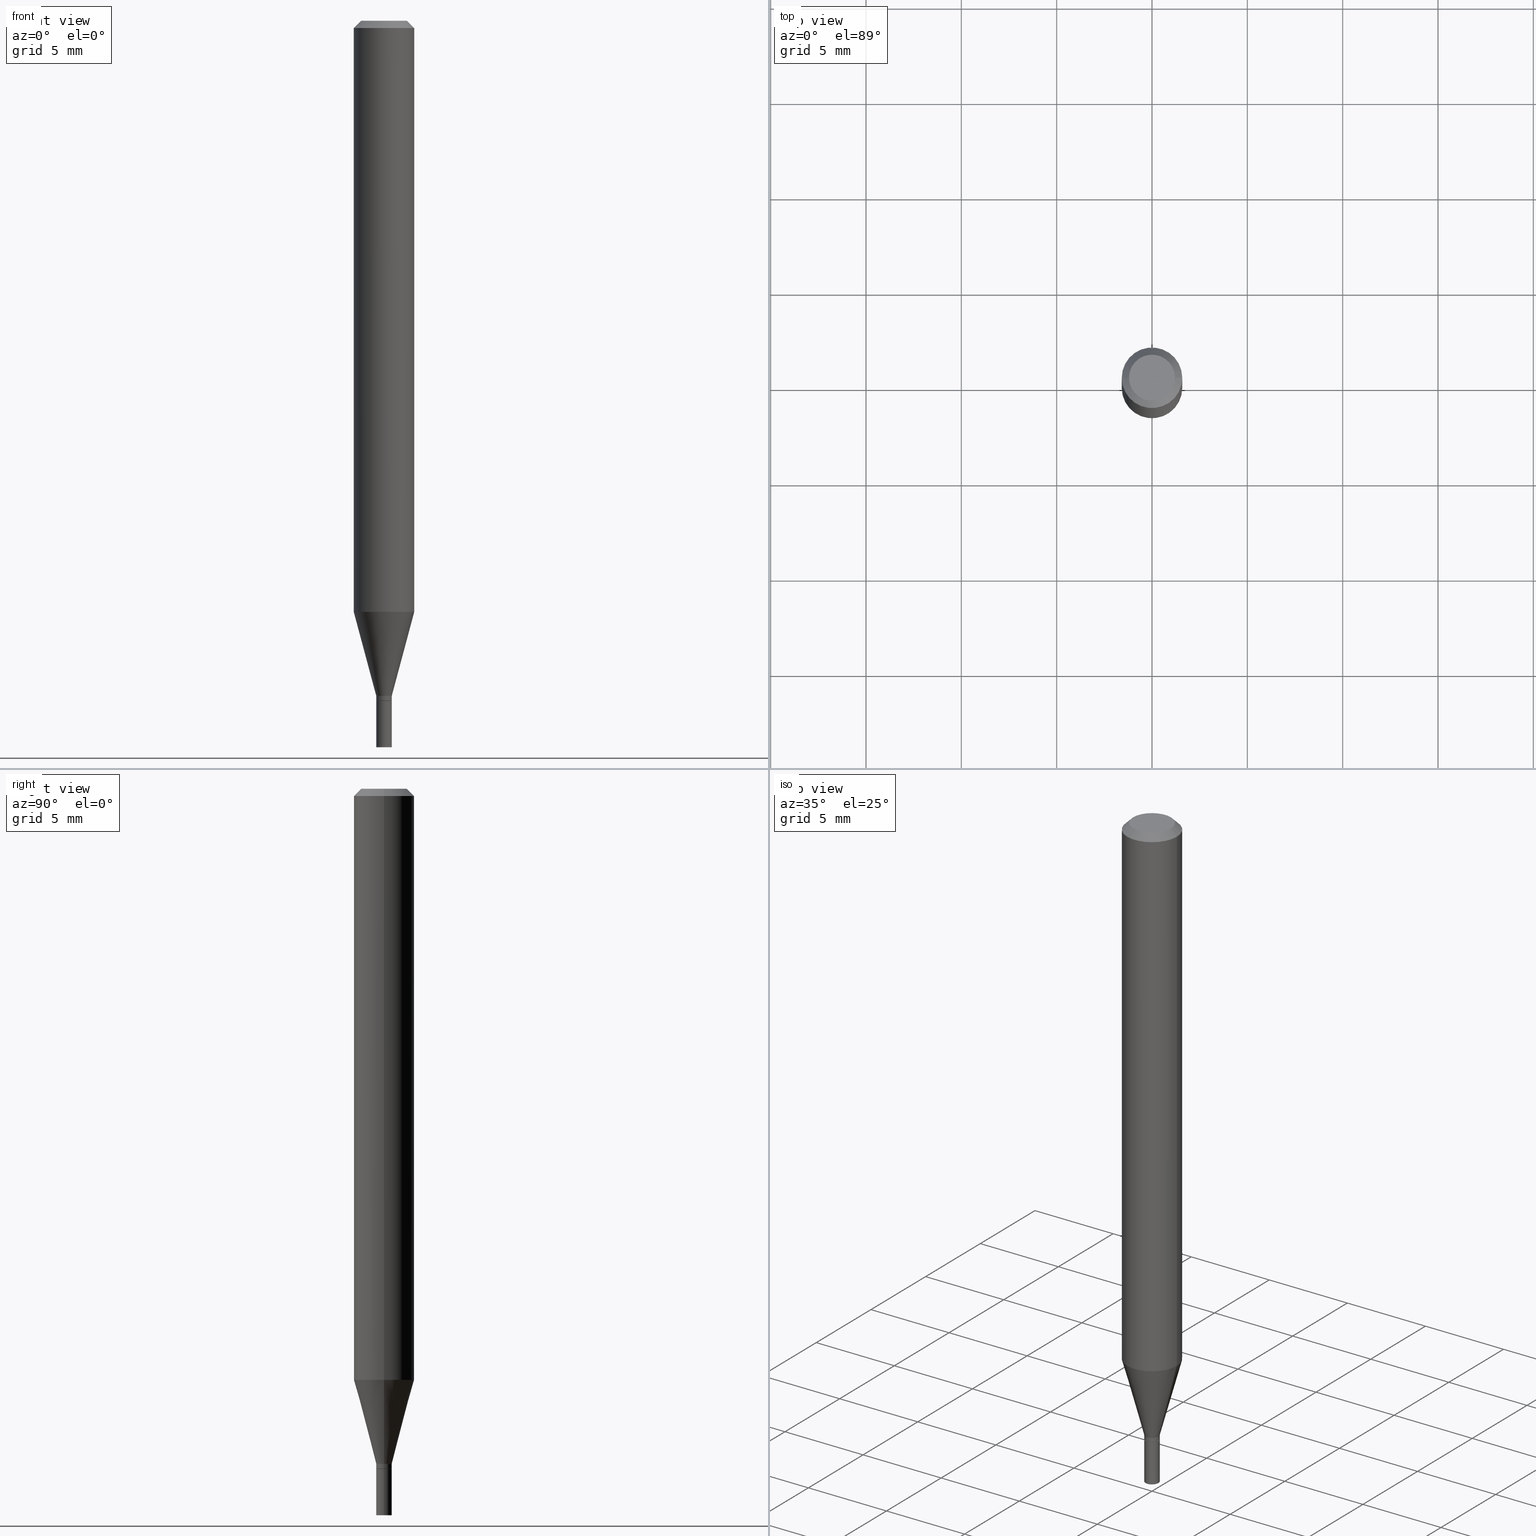
[diagram: canonical four-view strip — front | top / right | iso, engineering-drawing reading convention]
A machine part, canonical four-view strip (front | top / right | iso — engineering-drawing reading convention). The complete STEP part file that produces these views, byte-faithful:
ISO-10303-21;
HEADER;
FILE_DESCRIPTION (( 'STEP AP203' ),
    '1' );
FILE_NAME ('00838.STEP',
    '2024-03-19T22:39:48',
    ( '' ),
    ( '' ),
    'SwSTEP 2.0',
    'SolidWorks 2023',
    '' );
FILE_SCHEMA (( 'CONFIG_CONTROL_DESIGN' ));
ENDSEC;

DATA;
#1 = DIRECTION ( 'NONE',  ( 1.000000000000000000, -6.982962677686244622E-15, 0.000000000000000000 ) ) ;
#2 = PLANE ( 'NONE',  #446 ) ;
#3 = EDGE_LOOP ( 'NONE', ( #109, #317 ) ) ;
#4 = DATE_AND_TIME ( #211, #93 ) ;
#5 = DIRECTION ( 'NONE',  ( 0.2588190451025213501, 1.565188264969621968E-15, 0.9659258262890682012 ) ) ;
#6 = AXIS2_PLACEMENT_3D ( 'NONE', #67, #328, #216 ) ;
#7 = ORIENTED_EDGE ( 'NONE', *, *, #84, .T. ) ;
#8 = CARTESIAN_POINT ( 'NONE',  ( 2.984595972587221379E-29, -4.261212048961128661E-15, -1.220459637448047641 ) ) ;
#9 = VERTEX_POINT ( 'NONE', #164 ) ;
#10 = CONICAL_SURFACE ( 'NONE', #351, 0.01599999999999992401, 0.2617993877991500740 ) ;
#11 = EDGE_CURVE ( 'NONE', #308, #9, #283, .T. ) ;
#12 = ORIENTED_EDGE ( 'NONE', *, *, #218, .F. ) ;
#13 = DIRECTION ( 'NONE',  ( -2.445468806185136597E-29, 3.491481338843145583E-15, 1.000000000000000000 ) ) ;
#14 = ORIENTED_EDGE ( 'NONE', *, *, #11, .T. ) ;
#15 = ORIENTED_EDGE ( 'NONE', *, *, #94, .T. ) ;
#16 = ADVANCED_FACE ( 'NONE', ( #457 ), #201, .T. ) ;
#17 = ORIENTED_EDGE ( 'NONE', *, *, #192, .T. ) ;
#18 = CIRCLE ( 'NONE', #429, 0.01600000000000000033 ) ;
#19 = CARTESIAN_POINT ( 'NONE',  ( 0.01600000000000000033, -1.117274028429802713E-16, 7.801882841273497199E-31 ) ) ;
#20 = CARTESIAN_POINT ( 'NONE',  ( -0.06250000000000000000, 3.840629472727444916E-16, -0.01499999999999999944 ) ) ;
#21 = CARTESIAN_POINT ( 'NONE',  ( 3.432215469480839613E-29, -4.900294059066355366E-15, -1.403500000000000192 ) ) ;
#22 = CIRCLE ( 'NONE', #180, 0.01599999999999992401 ) ;
#23 = LOCAL_TIME ( 18, 39, 48.00000000000000000, #367 ) ;
#24 = COORDINATED_UNIVERSAL_TIME_OFFSET ( 5, 0, .BEHIND. ) ;
#25 = EDGE_CURVE ( 'NONE', #275, #335, #344, .T. ) ;
#26 = LINE ( 'NONE', #289, #316 ) ;
#27 = AXIS2_PLACEMENT_3D ( 'NONE', #270, #112, #82 ) ;
#28 = CARTESIAN_POINT ( 'NONE',  ( 3.433438203883931854E-29, -4.902039799735776870E-15, -1.404000000000000137 ) ) ;
#29 = SECURITY_CLASSIFICATION ( '', '', #402 ) ;
#30 = COORDINATED_UNIVERSAL_TIME_OFFSET ( 5, 0, .BEHIND. ) ;
#31 = CARTESIAN_POINT ( 'NONE',  ( 0.01599999999999992401, -4.978852389190325393E-15, -1.394000000000000128 ) ) ;
#32 = ADVANCED_FACE ( 'NONE', ( #382 ), #171, .T. ) ;
#33 = DIRECTION ( 'NONE',  ( -2.445468806185136597E-29, 3.491481338843145583E-15, 1.000000000000000000 ) ) ;
#34 = ORIENTED_EDGE ( 'NONE', *, *, #198, .T. ) ;
#35 = DIRECTION ( 'NONE',  ( 2.438088387897960049E-29, -3.491481338843145188E-15, -1.000000000000000000 ) ) ;
#36 = CLOSED_SHELL ( 'NONE', ( #410, #427, #32, #314, #153, #258, #229, #342, #448, #113, #238, #16 ) ) ;
#37 = AXIS2_PLACEMENT_3D ( 'NONE', #246, #363, #57 ) ;
#38 = VECTOR ( 'NONE', #403, 39.37007874015748143 ) ;
#39 = CYLINDRICAL_SURFACE ( 'NONE', #99, 0.01600000000000000033 ) ;
#40 = CARTESIAN_POINT ( 'NONE',  ( 3.408983515822080869E-29, -4.867124986347346010E-15, -1.394000000000000128 ) ) ;
#41 = LINE ( 'NONE', #235, #165 ) ;
#42 = VERTEX_POINT ( 'NONE', #52 ) ;
#43 = EDGE_CURVE ( 'NONE', #350, #266, #431, .T. ) ;
#44 = ORIENTED_EDGE ( 'NONE', *, *, #294, .T. ) ;
#45 = FACE_OUTER_BOUND ( 'NONE', #420, .T. ) ;
#46 = AXIS2_PLACEMENT_3D ( 'NONE', #284, #458, #169 ) ;
#47 = ORIENTED_EDGE ( 'NONE', *, *, #326, .T. ) ;
#48 = ORIENTED_EDGE ( 'NONE', *, *, #120, .F. ) ;
#49 = EDGE_CURVE ( 'NONE', #196, #226, #242, .T. ) ;
#50 = EDGE_CURVE ( 'NONE', #308, #226, #205, .T. ) ;
#51 = CARTESIAN_POINT ( 'NONE',  ( 8.117327640808780352E-46, -1.158939255633829398E-31, -3.319333953587241620E-17 ) ) ;
#52 = CARTESIAN_POINT ( 'NONE',  ( -0.01599999999999992401, -4.285280493868398751E-15, -1.394000000000000128 ) ) ;
#53 = AXIS2_PLACEMENT_3D ( 'NONE', #208, #360, #1 ) ;
#54 = CC_DESIGN_APPROVAL ( #383, ( #378 ) ) ;
#55 = ORIENTED_EDGE ( 'NONE', *, *, #49, .T. ) ;
#56 = LINE ( 'NONE', #463, #248 ) ;
#57 = DIRECTION ( 'NONE',  ( 1.000000000000000000, -6.982962677686266711E-15, 4.876176775795935793E-29 ) ) ;
#58 = CARTESIAN_POINT ( 'NONE',  ( 8.117327640808780352E-46, -1.158939255633829398E-31, -3.319333953587241620E-17 ) ) ;
#59 = LOCAL_TIME ( 18, 39, 48.00000000000000000, #213 ) ;
#60 = DIRECTION ( 'NONE',  ( 1.000000000000000000, -6.982962677686271444E-15, 0.000000000000000000 ) ) ;
#61 = EDGE_CURVE ( 'NONE', #266, #231, #91, .T. ) ;
#62 = APPROVAL_STATUS ( 'not_yet_approved' ) ;
#63 = CARTESIAN_POINT ( 'NONE',  ( -0.01599999999999992401, -4.753438148625730668E-15, -1.394000000000000128 ) ) ;
#64 = APPLICATION_PROTOCOL_DEFINITION ( 'international standard', 'config_control_design', 1994, #442 ) ;
#65 = DIRECTION ( 'NONE',  ( 0.7071067811865483499, -7.319954787623257623E-15, -0.7071067811865466846 ) ) ;
#66 = DATE_AND_TIME ( #396, #23 ) ;
#67 = CARTESIAN_POINT ( 'NONE',  ( 3.433438203883931854E-29, -4.902039799735776870E-15, -1.404000000000000137 ) ) ;
#68 = CIRCLE ( 'NONE', #209, 0.06250000000000000000 ) ;
#69 = PERSON_AND_ORGANIZATION ( #310, #243 ) ;
#70 = DIRECTION ( 'NONE',  ( -2.445468806185136597E-29, 3.491481338843145583E-15, 1.000000000000000000 ) ) ;
#71 = DIRECTION ( 'NONE',  ( -0.7071067811865642261, 7.493145998870414114E-15, 0.7071067811865309194 ) ) ;
#72 = ORIENTED_EDGE ( 'NONE', *, *, #294, .F. ) ;
#73 = CARTESIAN_POINT ( 'NONE',  ( -0.01599999999999992401, -4.786607221344740024E-15, -1.403500000000000192 ) ) ;
#74 = EDGE_LOOP ( 'NONE', ( #240, #7, #414, #227 ) ) ;
#75 = DIRECTION ( 'NONE',  ( 1.000000000000000000, -6.982962677686266711E-15, 4.876176775795935793E-29 ) ) ;
#76 = AXIS2_PLACEMENT_3D ( 'NONE', #245, #89, #125 ) ;
#77 = EDGE_LOOP ( 'NONE', ( #90, #374, #95, #118 ) ) ;
#78 = CC_DESIGN_DATE_AND_TIME_ASSIGNMENT ( #438, #145, ( #389 ) ) ;
#79 = DIRECTION ( 'NONE',  ( -2.445468806185136597E-29, 3.491481338843145583E-15, 1.000000000000000000 ) ) ;
#80 = EDGE_LOOP ( 'NONE', ( #346, #450 ) ) ;
#81 = CARTESIAN_POINT ( 'NONE',  ( 0.01600000000000000033, -5.348949411107699138E-15, -1.500000000000000222 ) ) ;
#82 = DIRECTION ( 'NONE',  ( 1.000000000000000000, -6.982962677686237523E-15, 0.000000000000000000 ) ) ;
#83 = VERTEX_POINT ( 'NONE', #332 ) ;
#84 = EDGE_CURVE ( 'NONE', #42, #373, #361, .T. ) ;
#85 = VECTOR ( 'NONE', #387, 39.37007874015748143 ) ;
#86 = AXIS2_PLACEMENT_3D ( 'NONE', #333, #327, #134 ) ;
#87 = EDGE_LOOP ( 'NONE', ( #188, #460, #129, #279 ) ) ;
#88 = DIRECTION ( 'NONE',  ( 1.000000000000000000, -6.982962677686266711E-15, 4.876176775795935793E-29 ) ) ;
#89 = DIRECTION ( 'NONE',  ( -2.445468806185136597E-29, 3.491481338843145583E-15, 1.000000000000000000 ) ) ;
#90 = ORIENTED_EDGE ( 'NONE', *, *, #408, .T. ) ;
#91 = CIRCLE ( 'NONE', #424, 0.01600000000000000033 ) ;
#92 = DIRECTION ( 'NONE',  ( 2.445468806185136597E-29, -3.491481338843145583E-15, -1.000000000000000000 ) ) ;
#93 = LOCAL_TIME ( 18, 39, 48.00000000000000000, #30 ) ;
#94 = EDGE_CURVE ( 'NONE', #282, #350, #329, .T. ) ;
#95 = ORIENTED_EDGE ( 'NONE', *, *, #326, .F. ) ;
#96 = DIRECTION ( 'NONE',  ( 1.000000000000000000, -6.982962677686271444E-15, 0.000000000000000000 ) ) ;
#97 = LINE ( 'NONE', #63, #150 ) ;
#98 = ADVANCED_FACE ( 'NONE', ( #206 ), #143, .F. ) ;
#99 = AXIS2_PLACEMENT_3D ( 'NONE', #191, #194, #88 ) ;
#100 = FACE_OUTER_BOUND ( 'NONE', #298, .T. ) ;
#101 = APPROVAL_DATE_TIME ( #66, #383 ) ;
#102 = LINE ( 'NONE', #31, #322 ) ;
#103 = PERSON_AND_ORGANIZATION_ROLE ( 'creator' ) ;
#104 = DIRECTION ( 'NONE',  ( -2.445468806185136877E-29, 3.491481338843145188E-15, 1.000000000000000000 ) ) ;
#105 = APPROVAL_STATUS ( 'not_yet_approved' ) ;
#106 = CC_DESIGN_PERSON_AND_ORGANIZATION_ASSIGNMENT ( #69, #217, ( #29 ) ) ;
#107 = DIRECTION ( 'NONE',  ( 1.000000000000000000, -6.982962677686265922E-15, 4.876176775795935793E-29 ) ) ;
#108 = LINE ( 'NONE', #404, #385 ) ;
#109 = ORIENTED_EDGE ( 'NONE', *, *, #61, .T. ) ;
#110 = DATE_AND_TIME ( #447, #138 ) ;
#111 = CARTESIAN_POINT ( 'NONE',  ( 1.117274028430145868E-16, 0.01599999999999509800, -1.404000000000000137 ) ) ;
#112 = DIRECTION ( 'NONE',  ( -2.445468806185136597E-29, 3.491481338843145583E-15, 1.000000000000000000 ) ) ;
#113 = ADVANCED_FACE ( 'NONE', ( #135 ), #390, .F. ) ;
#114 = ORIENTED_EDGE ( 'NONE', *, *, #151, .T. ) ;
#115 = DIRECTION ( 'NONE',  ( 1.000000000000000000, -6.982962677686262766E-15, 0.000000000000000000 ) ) ;
#116 = AXIS2_PLACEMENT_3D ( 'NONE', #255, #437, #60 ) ;
#117 = AXIS2_PLACEMENT_3D ( 'NONE', #416, #79, #313 ) ;
#118 = ORIENTED_EDGE ( 'NONE', *, *, #184, .F. ) ;
#119 = ORIENTED_EDGE ( 'NONE', *, *, #372, .F. ) ;
#120 = EDGE_CURVE ( 'NONE', #282, #231, #26, .T. ) ;
#121 = ORIENTED_EDGE ( 'NONE', *, *, #190, .F. ) ;
#122 = LENGTH_MEASURE_WITH_UNIT ( LENGTH_MEASURE( 0.02539999999999999897 ), #466 );
#123 = AXIS2_PLACEMENT_3D ( 'NONE', #51, #315, #425 ) ;
#124 = ORIENTED_EDGE ( 'NONE', *, *, #239, .T. ) ;
#125 = DIRECTION ( 'NONE',  ( 1.000000000000000000, -6.982962677686237523E-15, 0.000000000000000000 ) ) ;
#126 = EDGE_LOOP ( 'NONE', ( #341, #423, #55, #453 ) ) ;
#127 = EDGE_CURVE ( 'NONE', #350, #282, #158, .T. ) ;
#128 = AXIS2_PLACEMENT_3D ( 'NONE', #185, #175, #249 ) ;
#129 = ORIENTED_EDGE ( 'NONE', *, *, #184, .T. ) ;
#130 = CC_DESIGN_APPROVAL ( #144, ( #389 ) ) ;
#131 = DIRECTION ( 'NONE',  ( 1.000000000000000000, -6.982962677686265922E-15, 4.876176775795935793E-29 ) ) ;
#132 = CC_DESIGN_PERSON_AND_ORGANIZATION_ASSIGNMENT ( #149, #103, ( #389 ) ) ;
#133 = DIRECTION ( 'NONE',  ( 1.000000000000000000, -6.982962677686267499E-15, 4.876681293081646444E-29 ) ) ;
#134 = DIRECTION ( 'NONE',  ( 1.000000000000000000, 0.000000000000000000, 0.000000000000000000 ) ) ;
#135 = FACE_OUTER_BOUND ( 'NONE', #380, .T. ) ;
#136 = CYLINDRICAL_SURFACE ( 'NONE', #173, 0.06250000000000000000 ) ;
#137 = PERSON_AND_ORGANIZATION_ROLE ( 'design_owner' ) ;
#138 = LOCAL_TIME ( 18, 39, 48.00000000000000000, #24 ) ;
#139 = CARTESIAN_POINT ( 'NONE',  ( -0.06250000000000000000, -1.712702924671825451E-15, -0.01499999999999999944 ) ) ;
#140 = DIRECTION ( 'NONE',  ( -2.438088387897960049E-29, 3.491481338843145188E-15, 1.000000000000000000 ) ) ;
#141 = PRODUCT_DEFINITION_SHAPE ( 'NONE', 'NONE',  #389 ) ;
#142 = FACE_OUTER_BOUND ( 'NONE', #3, .T. ) ;
#143 = PLANE ( 'NONE',  #197 ) ;
#144 = APPROVAL ( #62, 'UNSPECIFIED' ) ;
#145 = DATE_TIME_ROLE ( 'creation_date' ) ;
#146 = DIRECTION ( 'NONE',  ( 2.438088387897960049E-29, -3.491481338843145188E-15, -1.000000000000000000 ) ) ;
#147 = DIRECTION ( 'NONE',  ( -2.445468806185136597E-29, 3.491481338843145583E-15, 1.000000000000000000 ) ) ;
#148 = EDGE_LOOP ( 'NONE', ( #381, #386, #114, #72 ) ) ;
#149 = PERSON_AND_ORGANIZATION ( #310, #243 ) ;
#150 = VECTOR ( 'NONE', #330, 39.37007874015747433 ) ;
#151 = EDGE_CURVE ( 'NONE', #349, #196, #56, .T. ) ;
#152 = ORIENTED_EDGE ( 'NONE', *, *, #408, .F. ) ;
#153 = ADVANCED_FACE ( 'NONE', ( #100 ), #451, .T. ) ;
#154 = APPROVAL_ROLE ( '' ) ;
#155 = DIRECTION ( 'NONE',  ( -2.445468806185136597E-29, 3.491481338843145583E-15, 1.000000000000000000 ) ) ;
#156 = DIRECTION ( 'NONE',  ( -2.445468806185136597E-29, 3.491481338843145583E-15, 1.000000000000000000 ) ) ;
#157 =( NAMED_UNIT ( * ) SI_UNIT ( $, .STERADIAN. ) SOLID_ANGLE_UNIT ( ) );
#158 = CIRCLE ( 'NONE', #116, 0.01600000000000000033 ) ;
#159 = APPROVAL_PERSON_ORGANIZATION ( #339, #422, #154 ) ;
#160 = ORIENTED_EDGE ( 'NONE', *, *, #50, .T. ) ;
#161 = CALENDAR_DATE ( 2024, 19, 3 ) ;
#162 = FACE_OUTER_BOUND ( 'NONE', #311, .T. ) ;
#163 = EDGE_LOOP ( 'NONE', ( #47, #124, #121, #409 ) ) ;
#164 = CARTESIAN_POINT ( 'NONE',  ( 0.04749999999999999362, -4.035134999187579116E-16, -3.319333953586984624E-17 ) ) ;
#165 = VECTOR ( 'NONE', #388, 39.37007874015748143 ) ;
#166 = APPROVAL_PERSON_ORGANIZATION ( #220, #383, #252 ) ;
#167 = ORIENTED_EDGE ( 'NONE', *, *, #174, .T. ) ;
#168 = CC_DESIGN_PERSON_AND_ORGANIZATION_ASSIGNMENT ( #465, #137, ( #397 ) ) ;
#169 = DIRECTION ( 'NONE',  ( 1.000000000000000000, -6.982962677686265922E-15, 4.876176775795935793E-29 ) ) ;
#170 = DIRECTION ( 'NONE',  ( -0.7071067811865483499, 2.468850131082265738E-15, -0.7071067811865466846 ) ) ;
#171 = CONICAL_SURFACE ( 'NONE', #267, 0.06250000000000000000, 0.7853981633974495002 ) ;
#172 = LINE ( 'NONE', #285, #241 ) ;
#173 = AXIS2_PLACEMENT_3D ( 'NONE', #272, #13, #232 ) ;
#174 = EDGE_CURVE ( 'NONE', #455, #262, #22, .T. ) ;
#175 = DIRECTION ( 'NONE',  ( -2.445468806185136597E-29, 3.491481338843145583E-15, 1.000000000000000000 ) ) ;
#176 = LINE ( 'NONE', #177, #207 ) ;
#177 = CARTESIAN_POINT ( 'NONE',  ( 0.06250000000000000000, -4.811533449433679005E-16, -0.01499999999999999944 ) ) ;
#178 = CARTESIAN_POINT ( 'NONE',  ( 0.01599999999999992401, -4.978852389190325393E-15, -1.394000000000000128 ) ) ;
#179 = DIRECTION ( 'NONE',  ( -2.445468806185136597E-29, 3.491481338843145583E-15, 1.000000000000000000 ) ) ;
#180 = AXIS2_PLACEMENT_3D ( 'NONE', #21, #433, #462 ) ;
#181 = APPLICATION_PROTOCOL_DEFINITION ( 'international standard', 'config_control_design', 1994, #393 ) ;
#182 = AXIS2_PLACEMENT_3D ( 'NONE', #228, #375, #274 ) ;
#183 = CARTESIAN_POINT ( 'NONE',  ( 3.316907271900976096E-16, 0.04749999999999999362, -1.824420333629856199E-16 ) ) ;
#184 = EDGE_CURVE ( 'NONE', #335, #262, #172, .T. ) ;
#185 = CARTESIAN_POINT ( 'NONE',  ( 3.668203209277704895E-29, -5.237222008264718177E-15, -1.500000000000000222 ) ) ;
#186 = PERSON_AND_ORGANIZATION ( #310, #243 ) ;
#187 = PLANE ( 'NONE',  #203 ) ;
#188 = ORIENTED_EDGE ( 'NONE', *, *, #304, .F. ) ;
#189 = DATE_TIME_ROLE ( 'classification_date' ) ;
#190 = EDGE_CURVE ( 'NONE', #373, #42, #277, .T. ) ;
#191 = CARTESIAN_POINT ( 'NONE',  ( 0.000000000000000000, 0.000000000000000000, 0.000000000000000000 ) ) ;
#192 = EDGE_CURVE ( 'NONE', #9, #308, #356, .T. ) ;
#193 = ORIENTED_EDGE ( 'NONE', *, *, #127, .T. ) ;
#194 = DIRECTION ( 'NONE',  ( -2.445468806185136597E-29, 3.491481338843145583E-15, 1.000000000000000000 ) ) ;
#195 = DIRECTION ( 'NONE',  ( 1.000000000000000000, -6.982962677686244622E-15, 0.000000000000000000 ) ) ;
#196 = VERTEX_POINT ( 'NONE', #286 ) ;
#197 = AXIS2_PLACEMENT_3D ( 'NONE', #293, #324, #392 ) ;
#198 = EDGE_CURVE ( 'NONE', #42, #83, #97, .T. ) ;
#199 = ORIENTED_EDGE ( 'NONE', *, *, #49, .F. ) ;
#200 = ORIENTED_EDGE ( 'NONE', *, *, #190, .T. ) ;
#201 = CYLINDRICAL_SURFACE ( 'NONE', #46, 0.01599999999999992401 ) ;
#202 = EDGE_CURVE ( 'NONE', #262, #373, #41, .T. ) ;
#203 = AXIS2_PLACEMENT_3D ( 'NONE', #111, #35, #336 ) ;
#204 = ORIENTED_EDGE ( 'NONE', *, *, #439, .F. ) ;
#205 = LINE ( 'NONE', #20, #297 ) ;
#206 = FACE_OUTER_BOUND ( 'NONE', #80, .T. ) ;
#207 = VECTOR ( 'NONE', #65, 39.37007874015748143 ) ;
#208 = CARTESIAN_POINT ( 'NONE',  ( 3.408983515822080869E-29, -4.867124986347346010E-15, -1.394000000000000128 ) ) ;
#209 = AXIS2_PLACEMENT_3D ( 'NONE', #8, #155, #115 ) ;
#210 = DIRECTION ( 'NONE',  ( 1.000000000000000000, -6.982962677686244622E-15, 0.000000000000000000 ) ) ;
#211 = CALENDAR_DATE ( 2024, 19, 3 ) ;
#212 = DIRECTION ( 'NONE',  ( -2.445468806185136597E-29, 3.491481338843145583E-15, 1.000000000000000000 ) ) ;
#213 = COORDINATED_UNIVERSAL_TIME_OFFSET ( 5, 0, .BEHIND. ) ;
#214 = CC_DESIGN_PERSON_AND_ORGANIZATION_ASSIGNMENT ( #359, #287, ( #378 ) ) ;
#215 = FACE_OUTER_BOUND ( 'NONE', #148, .T. ) ;
#216 = DIRECTION ( 'NONE',  ( 1.000000000000000000, -6.982962677686237523E-15, 0.000000000000000000 ) ) ;
#217 = PERSON_AND_ORGANIZATION_ROLE ( 'classification_officer' ) ;
#218 = EDGE_CURVE ( 'NONE', #9, #196, #176, .T. ) ;
#219 = ORIENTED_EDGE ( 'NONE', *, *, #452, .T. ) ;
#220 = PERSON_AND_ORGANIZATION ( #310, #243 ) ;
#221 = ORIENTED_EDGE ( 'NONE', *, *, #151, .F. ) ;
#222 = AXIS2_PLACEMENT_3D ( 'NONE', #394, #358, #210 ) ;
#223 = DIRECTION ( 'NONE',  ( -2.445468806185136597E-29, 3.491481338843145583E-15, 1.000000000000000000 ) ) ;
#224 =( CONVERSION_BASED_UNIT ( 'INCH', #122 ) LENGTH_UNIT ( ) NAMED_UNIT ( #312 ) );
#225 = CONICAL_SURFACE ( 'NONE', #6, 0.01550000000000000162, 0.7853981633974718157 ) ;
#226 = VERTEX_POINT ( 'NONE', #139 ) ;
#227 = ORIENTED_EDGE ( 'NONE', *, *, #347, .F. ) ;
#228 = CARTESIAN_POINT ( 'NONE',  ( 2.984595972587221379E-29, -4.261212048961128661E-15, -1.220459637448047641 ) ) ;
#229 = ADVANCED_FACE ( 'NONE', ( #215 ), #254, .T. ) ;
#230 = CARTESIAN_POINT ( 'NONE',  ( -0.01599999999999992401, 1.136868377216154898E-16, -7.870296144407811675E-31 ) ) ;
#231 = VERTEX_POINT ( 'NONE', #464 ) ;
#232 = DIRECTION ( 'NONE',  ( 1.000000000000000000, -6.982962677686266711E-15, 4.876176775795935793E-29 ) ) ;
#233 = ORIENTED_EDGE ( 'NONE', *, *, #11, .F. ) ;
#234 = DIRECTION ( 'NONE',  ( 2.445468806185136597E-29, -3.491481338843145583E-15, -1.000000000000000000 ) ) ;
#235 = CARTESIAN_POINT ( 'NONE',  ( 0.01599999999999992401, -1.117274028429797290E-16, 7.801882841273460414E-31 ) ) ;
#236 = ADVANCED_BREP_SHAPE_REPRESENTATION ( '00838', ( #280, #436, #86 ), #430 ) ;
#237 = CARTESIAN_POINT ( 'NONE',  ( 3.668203209277705088E-31, -5.237222008264718399E-17, -0.01499999999999999944 ) ) ;
#238 = ADVANCED_FACE ( 'NONE', ( #400 ), #435, .T. ) ;
#239 = EDGE_CURVE ( 'NONE', #455, #42, #368, .T. ) ;
#240 = ORIENTED_EDGE ( 'NONE', *, *, #198, .F. ) ;
#241 = VECTOR ( 'NONE', #432, 39.37007874015748143 ) ;
#242 = CIRCLE ( 'NONE', #384, 0.06250000000000000000 ) ;
#243 = ORGANIZATION ( 'UNSPECIFIED', 'UNSPECIFIED', '' ) ;
#244 = DIRECTION ( 'NONE',  ( 1.000000000000000000, -6.982962677686266711E-15, 0.000000000000000000 ) ) ;
#245 = CARTESIAN_POINT ( 'NONE',  ( 3.433438203883931854E-29, -4.902039799735776870E-15, -1.404000000000000137 ) ) ;
#246 = CARTESIAN_POINT ( 'NONE',  ( 0.000000000000000000, 0.000000000000000000, 0.000000000000000000 ) ) ;
#247 = DIRECTION ( 'NONE',  ( -2.445468806185136877E-29, 3.491481338843145188E-15, 1.000000000000000000 ) ) ;
#248 = VECTOR ( 'NONE', #247, 39.37007874015748143 ) ;
#249 = DIRECTION ( 'NONE',  ( 1.000000000000000000, -6.982962677686271444E-15, 0.000000000000000000 ) ) ;
#250 = DIRECTION ( 'NONE',  ( 1.000000000000000000, -6.982962677686244622E-15, 0.000000000000000000 ) ) ;
#251 = EDGE_CURVE ( 'NONE', #231, #266, #18, .T. ) ;
#252 = APPROVAL_ROLE ( '' ) ;
#253 = CYLINDRICAL_SURFACE ( 'NONE', #401, 0.01599999999999992401 ) ;
#254 = CYLINDRICAL_SURFACE ( 'NONE', #37, 0.06250000000000000000 ) ;
#255 = CARTESIAN_POINT ( 'NONE',  ( 3.668203209277704895E-29, -5.237222008264718177E-15, -1.500000000000000222 ) ) ;
#256 = CLOSED_SHELL ( 'NONE', ( #325, #98, #318, #395 ) ) ;
#257 = PERSON_AND_ORGANIZATION_ROLE ( 'design_supplier' ) ;
#258 = ADVANCED_FACE ( 'NONE', ( #412 ), #10, .T. ) ;
#259 = ORIENTED_EDGE ( 'NONE', *, *, #84, .F. ) ;
#260 = CARTESIAN_POINT ( 'NONE',  ( 0.000000000000000000, 0.000000000000000000, 0.000000000000000000 ) ) ;
#261 = CARTESIAN_POINT ( 'NONE',  ( 0.01600000000000000033, -5.013767202578757042E-15, -1.404000000000000137 ) ) ;
#262 = VERTEX_POINT ( 'NONE', #376 ) ;
#263 = CARTESIAN_POINT ( 'NONE',  ( 0.000000000000000000, 0.000000000000000000, 0.000000000000000000 ) ) ;
#264 = UNCERTAINTY_MEASURE_WITH_UNIT (LENGTH_MEASURE( 1.000000000000000082E-05 ), #224, 'distance_accuracy_value', 'NONE');
#265 = DIRECTION ( 'NONE',  ( -2.445468806185136877E-29, 3.491481338843145188E-15, 1.000000000000000000 ) ) ;
#266 = VERTEX_POINT ( 'NONE', #261 ) ;
#267 = AXIS2_PLACEMENT_3D ( 'NONE', #237, #92, #352 ) ;
#268 = CARTESIAN_POINT ( 'NONE',  ( 0.01550000000000000162, -5.010275721239913246E-15, -1.404000000000000137 ) ) ;
#269 = AXIS2_PLACEMENT_3D ( 'NONE', #28, #364, #340 ) ;
#270 = CARTESIAN_POINT ( 'NONE',  ( 3.433438203883931854E-29, -4.902039799735776870E-15, -1.404000000000000137 ) ) ;
#271 = ORIENTED_EDGE ( 'NONE', *, *, #61, .F. ) ;
#272 = CARTESIAN_POINT ( 'NONE',  ( 0.000000000000000000, 0.000000000000000000, 0.000000000000000000 ) ) ;
#273 = ORIENTED_EDGE ( 'NONE', *, *, #372, .T. ) ;
#274 = DIRECTION ( 'NONE',  ( 1.000000000000000000, -6.982962677686262766E-15, 0.000000000000000000 ) ) ;
#275 = VERTEX_POINT ( 'NONE', #407 ) ;
#276 = CYLINDRICAL_SURFACE ( 'NONE', #331, 0.01600000000000000033 ) ;
#277 = CIRCLE ( 'NONE', #222, 0.01599999999999992401 ) ;
#278 = APPROVAL_PERSON_ORGANIZATION ( #292, #144, #300 ) ;
#279 = ORIENTED_EDGE ( 'NONE', *, *, #174, .F. ) ;
#280 = MANIFOLD_SOLID_BREP ( 'Body-Move/Copy2[1]', #256 ) ;
#281 = ORIENTED_EDGE ( 'NONE', *, *, #120, .T. ) ;
#282 = VERTEX_POINT ( 'NONE', #307 ) ;
#283 = CIRCLE ( 'NONE', #123, 0.04749999999999999362 ) ;
#284 = CARTESIAN_POINT ( 'NONE',  ( 0.000000000000000000, 0.000000000000000000, 0.000000000000000000 ) ) ;
#285 = CARTESIAN_POINT ( 'NONE',  ( 0.01550000000000000162, -5.010275721239913246E-15, -1.404000000000000137 ) ) ;
#286 = CARTESIAN_POINT ( 'NONE',  ( 0.06250000000000000000, -4.888073874380388472E-16, -0.01499999999999999944 ) ) ;
#287 = PERSON_AND_ORGANIZATION_ROLE ( 'creator' ) ;
#288 = CIRCLE ( 'NONE', #413, 0.06250000000000000000 ) ;
#289 = CARTESIAN_POINT ( 'NONE',  ( -0.01600000000000000033, 1.136868377216160321E-16, -7.870296144407849335E-31 ) ) ;
#290 = CIRCLE ( 'NONE', #182, 0.06250000000000000000 ) ;
#291 = APPROVAL_DATE_TIME ( #4, #144 ) ;
#292 = PERSON_AND_ORGANIZATION ( #310, #243 ) ;
#293 = CARTESIAN_POINT ( 'NONE',  ( 3.584916967085606921E-29, -5.356492647442320375E-15, -1.500000000000000222 ) ) ;
#294 = EDGE_CURVE ( 'NONE', #226, #196, #288, .T. ) ;
#295 = DIRECTION ( 'NONE',  ( -1.000000000000000000, 6.982962677686265922E-15, -4.876176775795935793E-29 ) ) ;
#296 = DIRECTION ( 'NONE',  ( 1.000000000000000000, -6.982962677686266711E-15, 0.000000000000000000 ) ) ;
#297 = VECTOR ( 'NONE', #170, 39.37007874015748143 ) ;
#298 = EDGE_LOOP ( 'NONE', ( #200, #34, #119, #204 ) ) ;
#299 = AXIS2_PLACEMENT_3D ( 'NONE', #379, #234, #302 ) ;
#300 = APPROVAL_ROLE ( '' ) ;
#301 = ORIENTED_EDGE ( 'NONE', *, *, #43, .F. ) ;
#302 = DIRECTION ( 'NONE',  ( -1.000000000000000000, 6.982962677686266711E-15, 0.000000000000000000 ) ) ;
#303 = ORIENTED_EDGE ( 'NONE', *, *, #251, .F. ) ;
#304 = EDGE_CURVE ( 'NONE', #275, #455, #108, .T. ) ;
#305 = APPROVAL_DATE_TIME ( #309, #422 ) ;
#306 = CC_DESIGN_APPROVAL ( #422, ( #29 ) ) ;
#307 = CARTESIAN_POINT ( 'NONE',  ( -0.01600000000000000033, -4.955944066278631393E-15, -1.500000000000000222 ) ) ;
#308 = VERTEX_POINT ( 'NONE', #366 ) ;
#309 = DATE_AND_TIME ( #161, #357 ) ;
#310 = PERSON ( 'UNSPECIFIED', 'UNSPECIFIED', 'UNSPECIFIED', ('UNSPECIFIED'), ('UNSPECIFIED'), ('UNSPECIFIED') ) ;
#311 = EDGE_LOOP ( 'NONE', ( #12, #233, #160, #44 ) ) ;
#312 = DIMENSIONAL_EXPONENTS ( 1.000000000000000000, 0.000000000000000000, 0.000000000000000000, 0.000000000000000000, 0.000000000000000000, 0.000000000000000000, 0.000000000000000000 ) ;
#313 = DIRECTION ( 'NONE',  ( 1.000000000000000000, -6.982962677686244622E-15, 0.000000000000000000 ) ) ;
#314 = ADVANCED_FACE ( 'NONE', ( #365 ), #136, .T. ) ;
#315 = DIRECTION ( 'NONE',  ( -2.445468806185136597E-29, 3.491481338843145583E-15, 1.000000000000000000 ) ) ;
#316 = VECTOR ( 'NONE', #104, 39.37007874015748143 ) ;
#317 = ORIENTED_EDGE ( 'NONE', *, *, #251, .T. ) ;
#318 = ADVANCED_FACE ( 'NONE', ( #348 ), #39, .T. ) ;
#319 = CARTESIAN_POINT ( 'NONE',  ( 3.668203209277705088E-31, -5.237222008264718399E-17, -0.01499999999999999944 ) ) ;
#320 = CARTESIAN_POINT ( 'NONE',  ( 3.433438203883931854E-29, -4.902039799735776870E-15, -1.404000000000000137 ) ) ;
#321 = PRODUCT_RELATED_PRODUCT_CATEGORY ( 'detail', '', ( #397 ) ) ;
#322 = VECTOR ( 'NONE', #5, 39.37007874015747433 ) ;
#323 = DIRECTION ( 'NONE',  ( -2.445468806185136597E-29, 3.491481338843145583E-15, 1.000000000000000000 ) ) ;
#324 = DIRECTION ( 'NONE',  ( -2.438088387897960049E-29, 3.491481338843145188E-15, 1.000000000000000000 ) ) ;
#325 = ADVANCED_FACE ( 'NONE', ( #45 ), #276, .T. ) ;
#326 = EDGE_CURVE ( 'NONE', #262, #455, #371, .T. ) ;
#327 = DIRECTION ( 'NONE',  ( 0.000000000000000000, 0.000000000000000000, 1.000000000000000000 ) ) ;
#328 = DIRECTION ( 'NONE',  ( -2.445468806185136597E-29, 3.491481338843145583E-15, 1.000000000000000000 ) ) ;
#329 = CIRCLE ( 'NONE', #128, 0.01600000000000000033 ) ;
#330 = DIRECTION ( 'NONE',  ( -0.2588190451025213501, 5.211531920934551042E-15, 0.9659258262890682012 ) ) ;
#331 = AXIS2_PLACEMENT_3D ( 'NONE', #263, #223, #75 ) ;
#332 = CARTESIAN_POINT ( 'NONE',  ( -0.06250000000000000000, -3.817122839111066834E-15, -1.220459637448047641 ) ) ;
#333 = CARTESIAN_POINT ( 'NONE',  ( 0.000000000000000000, 0.000000000000000000, 0.000000000000000000 ) ) ;
#334 = FACE_OUTER_BOUND ( 'NONE', #354, .T. ) ;
#335 = VERTEX_POINT ( 'NONE', #268 ) ;
#336 = DIRECTION ( 'NONE',  ( -1.000000000000000000, 6.982962677686265922E-15, -4.876176775795935793E-29 ) ) ;
#337 = CARTESIAN_POINT ( 'NONE',  ( 3.433438203883931854E-29, -4.902039799735776870E-15, -1.404000000000000137 ) ) ;
#338 = ORIENTED_EDGE ( 'NONE', *, *, #239, .F. ) ;
#339 = PERSON_AND_ORGANIZATION ( #310, #243 ) ;
#340 = DIRECTION ( 'NONE',  ( 1.000000000000000000, -6.982962677686237523E-15, 0.000000000000000000 ) ) ;
#341 = ORIENTED_EDGE ( 'NONE', *, *, #192, .F. ) ;
#342 = ADVANCED_FACE ( 'NONE', ( #162 ), #415, .T. ) ;
#343 = EDGE_LOOP ( 'NONE', ( #338, #167, #418, #259 ) ) ;
#344 = CIRCLE ( 'NONE', #76, 0.01550000000000000162 ) ;
#345 = CARTESIAN_POINT ( 'NONE',  ( 3.668203209277705088E-31, -5.237222008264718399E-17, -0.01499999999999999944 ) ) ;
#346 = ORIENTED_EDGE ( 'NONE', *, *, #127, .F. ) ;
#347 = EDGE_CURVE ( 'NONE', #83, #349, #68, .T. ) ;
#348 = FACE_OUTER_BOUND ( 'NONE', #426, .T. ) ;
#349 = VERTEX_POINT ( 'NONE', #419 ) ;
#350 = VERTEX_POINT ( 'NONE', #81 ) ;
#351 = AXIS2_PLACEMENT_3D ( 'NONE', #40, #33, #195 ) ;
#352 = DIRECTION ( 'NONE',  ( -1.000000000000000000, 6.982962677686266711E-15, 0.000000000000000000 ) ) ;
#353 = CC_DESIGN_PERSON_AND_ORGANIZATION_ASSIGNMENT ( #186, #257, ( #378 ) ) ;
#354 = EDGE_LOOP ( 'NONE', ( #14, #17 ) ) ;
#355 = CARTESIAN_POINT ( 'NONE',  ( 3.408983515822080869E-29, -4.867124986347346010E-15, -1.394000000000000128 ) ) ;
#356 = CIRCLE ( 'NONE', #391, 0.04749999999999999362 ) ;
#357 = LOCAL_TIME ( 18, 39, 48.00000000000000000, #421 ) ;
#358 = DIRECTION ( 'NONE',  ( -2.445468806185136597E-29, 3.491481338843145583E-15, 1.000000000000000000 ) ) ;
#359 = PERSON_AND_ORGANIZATION ( #310, #243 ) ;
#360 = DIRECTION ( 'NONE',  ( -2.445468806185136597E-29, 3.491481338843145583E-15, 1.000000000000000000 ) ) ;
#361 = CIRCLE ( 'NONE', #53, 0.01599999999999992401 ) ;
#362 = CIRCLE ( 'NONE', #269, 0.01550000000000000162 ) ;
#363 = DIRECTION ( 'NONE',  ( -2.445468806185136597E-29, 3.491481338843145583E-15, 1.000000000000000000 ) ) ;
#364 = DIRECTION ( 'NONE',  ( -2.445468806185136597E-29, 3.491481338843145583E-15, 1.000000000000000000 ) ) ;
#365 = FACE_OUTER_BOUND ( 'NONE', #428, .T. ) ;
#366 = CARTESIAN_POINT ( 'NONE',  ( -0.04749999999999999362, 3.578768372314210506E-16, -3.319333953587482593E-17 ) ) ;
#367 = COORDINATED_UNIVERSAL_TIME_OFFSET ( 5, 0, .BEHIND. ) ;
#368 = LINE ( 'NONE', #230, #369 ) ;
#369 = VECTOR ( 'NONE', #265, 39.37007874015748143 ) ;
#370 = ORIENTED_EDGE ( 'NONE', *, *, #43, .T. ) ;
#371 = CIRCLE ( 'NONE', #117, 0.01599999999999992401 ) ;
#372 = EDGE_CURVE ( 'NONE', #349, #83, #290, .T. ) ;
#373 = VERTEX_POINT ( 'NONE', #178 ) ;
#374 = ORIENTED_EDGE ( 'NONE', *, *, #304, .T. ) ;
#375 = DIRECTION ( 'NONE',  ( -2.445468806185136597E-29, 3.491481338843145583E-15, 1.000000000000000000 ) ) ;
#376 = CARTESIAN_POINT ( 'NONE',  ( 0.01599999999999992401, -5.012021461909334750E-15, -1.403500000000000192 ) ) ;
#377 = AXIS2_PLACEMENT_3D ( 'NONE', #441, #140, #131 ) ;
#378 = PRODUCT_DEFINITION_FORMATION_WITH_SPECIFIED_SOURCE ( 'ANY', '', #397, .NOT_KNOWN. ) ;
#379 = CARTESIAN_POINT ( 'NONE',  ( 3.668203209277705088E-31, -5.237222008264718399E-17, -0.01499999999999999944 ) ) ;
#380 = EDGE_LOOP ( 'NONE', ( #152, #405 ) ) ;
#381 = ORIENTED_EDGE ( 'NONE', *, *, #452, .F. ) ;
#382 = FACE_OUTER_BOUND ( 'NONE', #126, .T. ) ;
#383 = APPROVAL ( #105, 'UNSPECIFIED' ) ;
#384 = AXIS2_PLACEMENT_3D ( 'NONE', #319, #459, #244 ) ;
#385 = VECTOR ( 'NONE', #71, 39.37007874015748143 ) ;
#386 = ORIENTED_EDGE ( 'NONE', *, *, #347, .T. ) ;
#387 = DIRECTION ( 'NONE',  ( -2.445468806185136877E-29, 3.491481338843145188E-15, 1.000000000000000000 ) ) ;
#388 = DIRECTION ( 'NONE',  ( -2.445468806185136877E-29, 3.491481338843145188E-15, 1.000000000000000000 ) ) ;
#389 = PRODUCT_DEFINITION ( 'UNKNOWN', '', #378, #456 ) ;
#390 = PLANE ( 'NONE',  #377 ) ;
#391 = AXIS2_PLACEMENT_3D ( 'NONE', #58, #179, #133 ) ;
#392 = DIRECTION ( 'NONE',  ( 1.000000000000000000, -6.982962677686265922E-15, 4.876176775795935793E-29 ) ) ;
#393 = APPLICATION_CONTEXT ( 'configuration controlled 3d designs of mechanical parts and assemblies' ) ;
#394 = CARTESIAN_POINT ( 'NONE',  ( 3.408983515822080869E-29, -4.867124986347346010E-15, -1.394000000000000128 ) ) ;
#395 = ADVANCED_FACE ( 'NONE', ( #142 ), #187, .F. ) ;
#396 = CALENDAR_DATE ( 2024, 19, 3 ) ;
#397 = PRODUCT ( '00838', '00838', '', ( #440 ) ) ;
#398 = CC_DESIGN_DATE_AND_TIME_ASSIGNMENT ( #110, #189, ( #29 ) ) ;
#399 = FACE_OUTER_BOUND ( 'NONE', #77, .T. ) ;
#400 = FACE_OUTER_BOUND ( 'NONE', #87, .T. ) ;
#401 = AXIS2_PLACEMENT_3D ( 'NONE', #260, #70, #107 ) ;
#402 = SECURITY_CLASSIFICATION_LEVEL ( 'unclassified' ) ;
#403 = DIRECTION ( 'NONE',  ( -2.445468806185136877E-29, 3.491481338843145188E-15, 1.000000000000000000 ) ) ;
#404 = CARTESIAN_POINT ( 'NONE',  ( -0.01550000000000000162, -4.791905675692960849E-15, -1.404000000000000137 ) ) ;
#405 = ORIENTED_EDGE ( 'NONE', *, *, #25, .F. ) ;
#406 = CARTESIAN_POINT ( 'NONE',  ( -0.06250000000000000000, 4.440892098500626162E-16, -3.074334431409316114E-30 ) ) ;
#407 = CARTESIAN_POINT ( 'NONE',  ( -0.01550000000000000162, -4.789256448518849648E-15, -1.404000000000000137 ) ) ;
#408 = EDGE_CURVE ( 'NONE', #335, #275, #362, .T. ) ;
#409 = ORIENTED_EDGE ( 'NONE', *, *, #202, .F. ) ;
#410 = ADVANCED_FACE ( 'NONE', ( #449 ), #253, .T. ) ;
#411 =( NAMED_UNIT ( * ) PLANE_ANGLE_UNIT ( ) SI_UNIT ( $, .RADIAN. ) );
#412 = FACE_OUTER_BOUND ( 'NONE', #74, .T. ) ;
#413 = AXIS2_PLACEMENT_3D ( 'NONE', #345, #147, #296 ) ;
#414 = ORIENTED_EDGE ( 'NONE', *, *, #439, .T. ) ;
#415 = CONICAL_SURFACE ( 'NONE', #299, 0.06250000000000000000, 0.7853981633974495002 ) ;
#416 = CARTESIAN_POINT ( 'NONE',  ( 3.432215469480839613E-29, -4.900294059066355366E-15, -1.403500000000000192 ) ) ;
#417 = DIRECTION ( 'NONE',  ( 1.000000000000000000, -6.982962677686271444E-15, 0.000000000000000000 ) ) ;
#418 = ORIENTED_EDGE ( 'NONE', *, *, #202, .T. ) ;
#419 = CARTESIAN_POINT ( 'NONE',  ( 0.06250000000000000000, -4.697647216316520331E-15, -1.220459637448047641 ) ) ;
#420 = EDGE_LOOP ( 'NONE', ( #193, #281, #271, #301 ) ) ;
#421 = COORDINATED_UNIVERSAL_TIME_OFFSET ( 5, 0, .BEHIND. ) ;
#422 = APPROVAL ( #434, 'UNSPECIFIED' ) ;
#423 = ORIENTED_EDGE ( 'NONE', *, *, #218, .T. ) ;
#424 = AXIS2_PLACEMENT_3D ( 'NONE', #320, #323, #96 ) ;
#425 = DIRECTION ( 'NONE',  ( 1.000000000000000000, -6.982962677686267499E-15, 4.876681293081646444E-29 ) ) ;
#426 = EDGE_LOOP ( 'NONE', ( #48, #15, #370, #303 ) ) ;
#427 = ADVANCED_FACE ( 'NONE', ( #399 ), #225, .T. ) ;
#428 = EDGE_LOOP ( 'NONE', ( #273, #219, #199, #221 ) ) ;
#429 = AXIS2_PLACEMENT_3D ( 'NONE', #337, #156, #417 ) ;
#430 =( GEOMETRIC_REPRESENTATION_CONTEXT ( 3 ) GLOBAL_UNCERTAINTY_ASSIGNED_CONTEXT ( ( #264 ) ) GLOBAL_UNIT_ASSIGNED_CONTEXT ( ( #224, #411, #157 ) ) REPRESENTATION_CONTEXT ( 'NONE', 'WORKASPACE' ) );
#431 = LINE ( 'NONE', #19, #85 ) ;
#432 = DIRECTION ( 'NONE',  ( 0.7071067811865642261, -2.468850131082431399E-15, 0.7071067811865309194 ) ) ;
#433 = DIRECTION ( 'NONE',  ( -2.445468806185136597E-29, 3.491481338843145583E-15, 1.000000000000000000 ) ) ;
#434 = APPROVAL_STATUS ( 'not_yet_approved' ) ;
#435 = CONICAL_SURFACE ( 'NONE', #27, 0.01550000000000000162, 0.7853981633974718157 ) ;
#436 = MANIFOLD_SOLID_BREP ( 'Body-Move/Copy2[2]', #36 ) ;
#437 = DIRECTION ( 'NONE',  ( -2.445468806185136597E-29, 3.491481338843145583E-15, 1.000000000000000000 ) ) ;
#438 = DATE_AND_TIME ( #443, #59 ) ;
#439 = EDGE_CURVE ( 'NONE', #373, #349, #102, .T. ) ;
#440 = MECHANICAL_CONTEXT ( 'NONE', #442, 'mechanical' ) ;
#441 = CARTESIAN_POINT ( 'NONE',  ( 3.433438203883931854E-29, -4.902039799735776870E-15, -1.404000000000000137 ) ) ;
#442 = APPLICATION_CONTEXT ( 'configuration controlled 3d designs of mechanical parts and assemblies' ) ;
#443 = CALENDAR_DATE ( 2024, 19, 3 ) ;
#444 = LINE ( 'NONE', #406, #38 ) ;
#445 = AXIS2_PLACEMENT_3D ( 'NONE', #355, #212, #250 ) ;
#446 = AXIS2_PLACEMENT_3D ( 'NONE', #183, #146, #295 ) ;
#447 = CALENDAR_DATE ( 2024, 19, 3 ) ;
#448 = ADVANCED_FACE ( 'NONE', ( #334 ), #2, .F. ) ;
#449 = FACE_OUTER_BOUND ( 'NONE', #163, .T. ) ;
#450 = ORIENTED_EDGE ( 'NONE', *, *, #94, .F. ) ;
#451 = CONICAL_SURFACE ( 'NONE', #445, 0.01599999999999992401, 0.2617993877991500740 ) ;
#452 = EDGE_CURVE ( 'NONE', #83, #226, #444, .T. ) ;
#453 = ORIENTED_EDGE ( 'NONE', *, *, #50, .F. ) ;
#454 = SHAPE_DEFINITION_REPRESENTATION ( #141, #236 ) ;
#455 = VERTEX_POINT ( 'NONE', #73 ) ;
#456 = DESIGN_CONTEXT ( 'detailed design', #393, 'design' ) ;
#457 = FACE_OUTER_BOUND ( 'NONE', #343, .T. ) ;
#458 = DIRECTION ( 'NONE',  ( -2.445468806185136597E-29, 3.491481338843145583E-15, 1.000000000000000000 ) ) ;
#459 = DIRECTION ( 'NONE',  ( -2.445468806185136597E-29, 3.491481338843145583E-15, 1.000000000000000000 ) ) ;
#460 = ORIENTED_EDGE ( 'NONE', *, *, #25, .T. ) ;
#461 = CC_DESIGN_SECURITY_CLASSIFICATION ( #29, ( #378 ) ) ;
#462 = DIRECTION ( 'NONE',  ( 1.000000000000000000, -6.982962677686244622E-15, 0.000000000000000000 ) ) ;
#463 = CARTESIAN_POINT ( 'NONE',  ( 0.06250000000000000000, -4.364351673553916694E-16, 3.047610484872459871E-30 ) ) ;
#464 = CARTESIAN_POINT ( 'NONE',  ( -0.01600000000000000033, -4.955944066278631393E-15, -1.404000000000000137 ) ) ;
#465 = PERSON_AND_ORGANIZATION ( #310, #243 ) ;
#466 =( LENGTH_UNIT ( ) NAMED_UNIT ( * ) SI_UNIT ( $, .METRE. ) );
ENDSEC;
END-ISO-10303-21;
